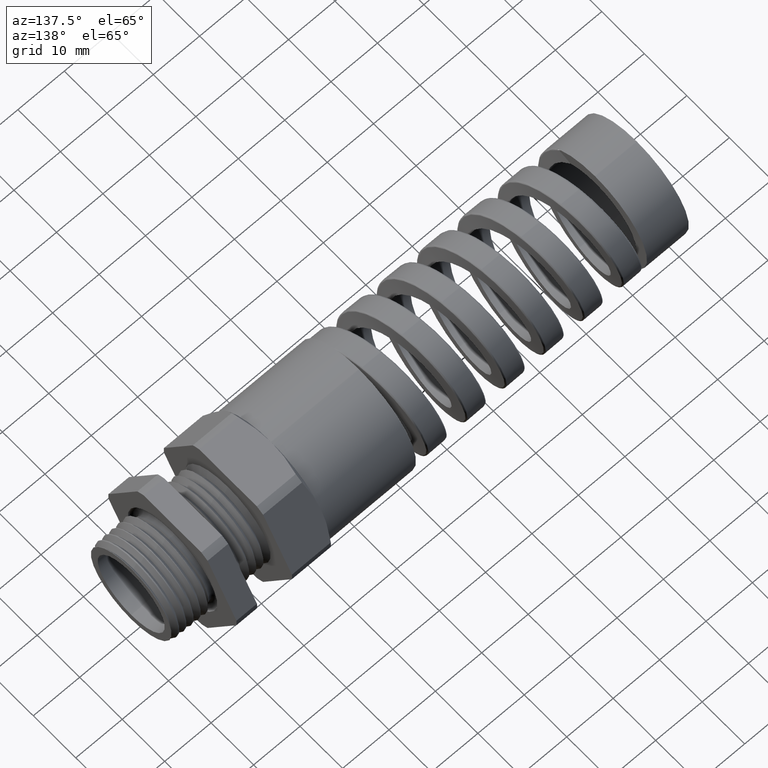
[diagram: clean part render]
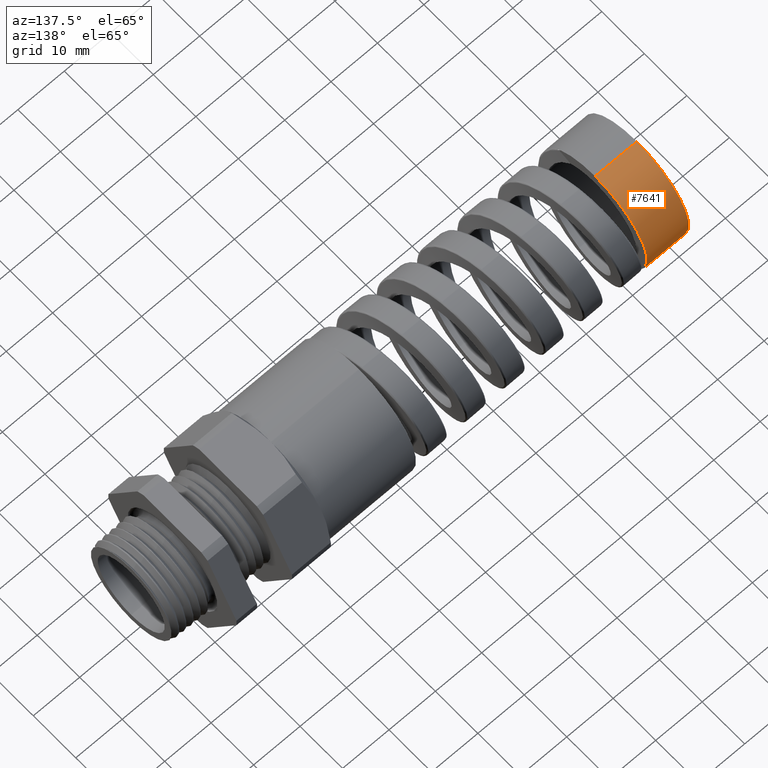
[diagram: same view with one face highlighted and labeled with its STEP entity id]
A machine part, auxiliary view. The second image highlights one B-rep face of the part: STEP entity #7641.
In plain terms, the highlighted cylindrical surface (partial cylindrical patch) has radius 12.2437 mm, axis along (1, 0, 0).
Its self-contained STEP definition (entity closure, byte-faithful):
#187 = EDGE_LOOP ( 'NONE', ( #7642, #7640, #7636, #7631, #7647 ) ) ;
#7011 = VERTEX_POINT ( 'NONE', #10409 ) ;
#7627 = VERTEX_POINT ( 'NONE', #10656 ) ;
#7629 = VERTEX_POINT ( 'NONE', #10655 ) ;
#7631 = ORIENTED_EDGE ( 'NONE', *, *, #7634, .F. ) ;
#7633 = EDGE_CURVE ( 'NONE', #7627, #7629, #10693, .T. ) ;
#7634 = EDGE_CURVE ( 'NONE', #7011, #7629, #10764, .T. ) ;
#7636 = ORIENTED_EDGE ( 'NONE', *, *, #7633, .T. ) ;
#7637 = EDGE_CURVE ( 'NONE', #7644, #7643, #10760, .T. ) ;
#7638 = EDGE_CURVE ( 'NONE', #7644, #7627, #10755, .T. ) ;
#7640 = ORIENTED_EDGE ( 'NONE', *, *, #7638, .T. ) ;
#7641 = ADVANCED_FACE ( 'NONE', ( #10746 ), #10745, .T. ) ;
#7642 = ORIENTED_EDGE ( 'NONE', *, *, #7637, .F. ) ;
#7643 = VERTEX_POINT ( 'NONE', #10740 ) ;
#7644 = VERTEX_POINT ( 'NONE', #10739 ) ;
#7647 = ORIENTED_EDGE ( 'NONE', *, *, #7655, .F. ) ;
#7655 = EDGE_CURVE ( 'NONE', #7643, #7011, #10780, .T. ) ;
#10409 = CARTESIAN_POINT ( 'NONE',  ( -3.585399999999999900, 0.0000000000000000000, -0.4820352270837504600 ) ) ;
#10655 = CARTESIAN_POINT ( 'NONE',  ( -3.585399999999999900, 0.2507277934985877600, -0.4116959238528023500 ) ) ;
#10656 = CARTESIAN_POINT ( 'NONE',  ( -3.585399999999999900, 5.903228979240410500E-017, 0.4820352270834717400 ) ) ;
#10693 = CIRCLE ( 'NONE', #10768, 0.4820352270834717400 ) ;
#10694 = CARTESIAN_POINT ( 'NONE',  ( -3.585399999999999900, 0.0000000000000000000, 0.0000000000000000000 ) ) ;
#10739 = CARTESIAN_POINT ( 'NONE',  ( -3.939999999999999900, 5.903228979240410500E-017, 0.4820352270834717400 ) ) ;
#10740 = CARTESIAN_POINT ( 'NONE',  ( -3.939999999999999900, 0.0000000000000000000, -0.4820352270834717400 ) ) ;
#10741 = DIRECTION ( 'NONE',  ( 0.0000000000000000000, 0.0000000000000000000, -1.000000000000000000 ) ) ;
#10742 = DIRECTION ( 'NONE',  ( 1.000000000000000000, 0.0000000000000000000, 0.0000000000000000000 ) ) ;
#10743 = CARTESIAN_POINT ( 'NONE',  ( -3.939999999999999900, 0.0000000000000000000, 0.0000000000000000000 ) ) ;
#10744 = AXIS2_PLACEMENT_3D ( 'NONE', #10743, #10742, #10741 ) ;
#10745 = CYLINDRICAL_SURFACE ( 'NONE', #10744, 0.4820352270834717400 ) ;
#10746 = FACE_OUTER_BOUND ( 'NONE', #187, .T. ) ;
#10752 = DIRECTION ( 'NONE',  ( 1.000000000000000000, 0.0000000000000000000, 0.0000000000000000000 ) ) ;
#10753 = VECTOR ( 'NONE', #10752, 39.37007874015748100 ) ;
#10754 = CARTESIAN_POINT ( 'NONE',  ( -3.939999999999999900, 5.903228979240410500E-017, 0.4820352270834717400 ) ) ;
#10755 = LINE ( 'NONE', #10754, #10753 ) ;
#10756 = DIRECTION ( 'NONE',  ( 0.0000000000000000000, 0.0000000000000000000, 1.000000000000000000 ) ) ;
#10757 = DIRECTION ( 'NONE',  ( -1.000000000000000000, 0.0000000000000000000, 0.0000000000000000000 ) ) ;
#10758 = CARTESIAN_POINT ( 'NONE',  ( -3.939999999999999900, 0.0000000000000000000, 0.0000000000000000000 ) ) ;
#10759 = AXIS2_PLACEMENT_3D ( 'NONE', #10758, #10757, #10756 ) ;
#10760 = CIRCLE ( 'NONE', #10759, 0.4820352270834717400 ) ;
#10761 = DIRECTION ( 'NONE',  ( 0.0000000000000000000, 0.0000000000000000000, -1.000000000000000000 ) ) ;
#10762 = DIRECTION ( 'NONE',  ( 1.000000000000000000, 0.0000000000000000000, 0.0000000000000000000 ) ) ;
#10763 = AXIS2_PLACEMENT_3D ( 'NONE', #10694, #10762, #10761 ) ;
#10764 = CIRCLE ( 'NONE', #10763, 0.4820352270837504600 ) ;
#10765 = DIRECTION ( 'NONE',  ( 0.0000000000000000000, 0.0000000000000000000, 1.000000000000000000 ) ) ;
#10766 = DIRECTION ( 'NONE',  ( -1.000000000000000000, 0.0000000000000000000, 0.0000000000000000000 ) ) ;
#10767 = CARTESIAN_POINT ( 'NONE',  ( -3.585399999999999900, 0.0000000000000000000, 0.0000000000000000000 ) ) ;
#10768 = AXIS2_PLACEMENT_3D ( 'NONE', #10767, #10766, #10765 ) ;
#10777 = DIRECTION ( 'NONE',  ( 1.000000000000000000, 0.0000000000000000000, 0.0000000000000000000 ) ) ;
#10778 = VECTOR ( 'NONE', #10777, 39.37007874015748100 ) ;
#10779 = CARTESIAN_POINT ( 'NONE',  ( -3.939999999999999900, 0.0000000000000000000, -0.4820352270834717400 ) ) ;
#10780 = LINE ( 'NONE', #10779, #10778 ) ;